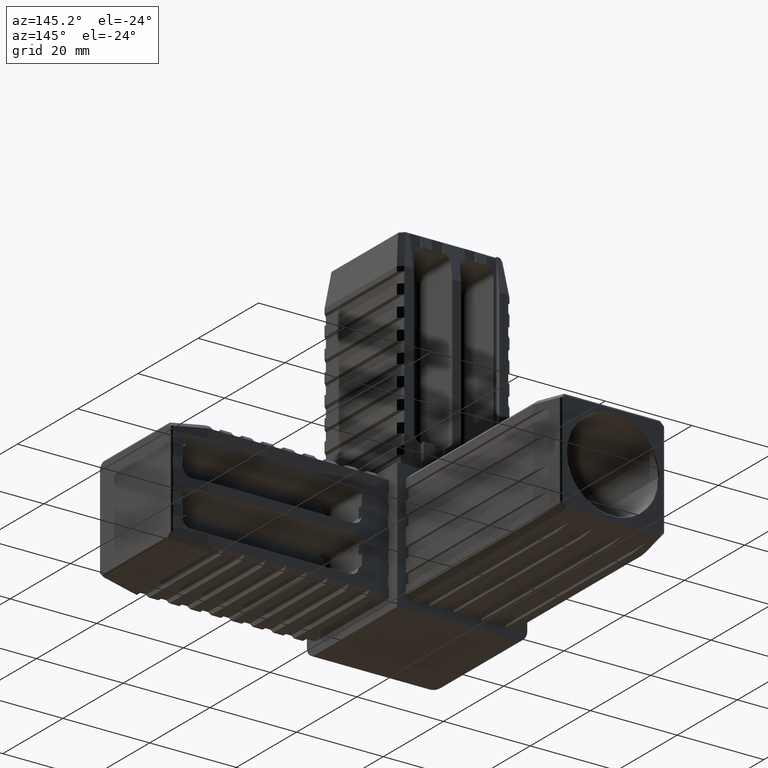
[diagram: clean part render]
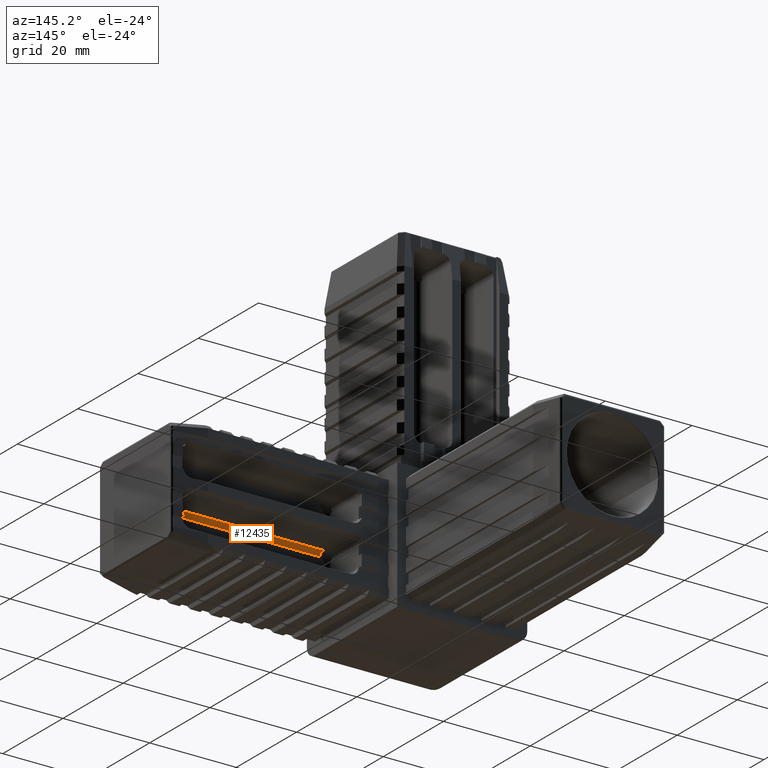
[diagram: same view with one face highlighted and labeled with its STEP entity id]
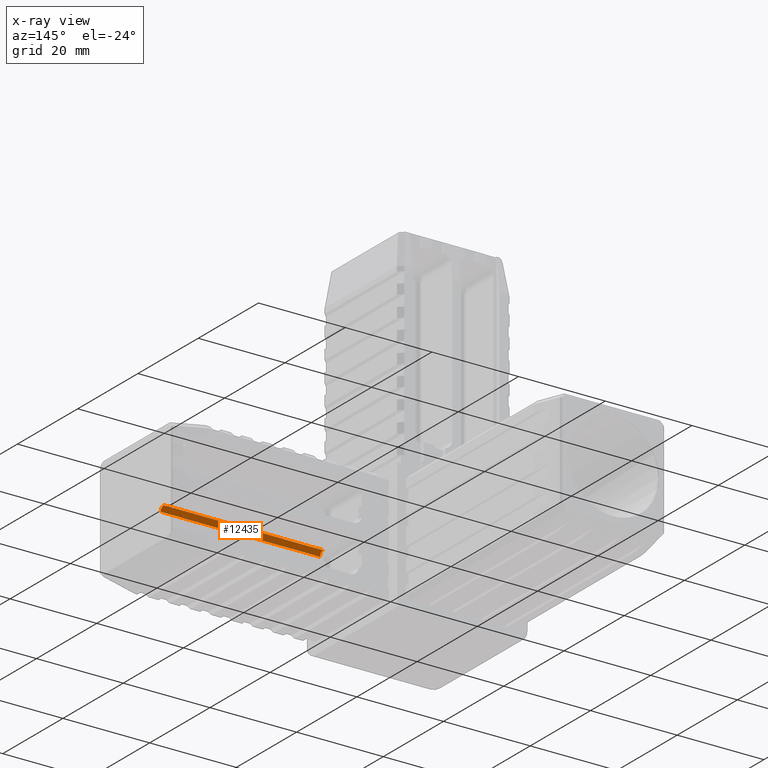
[diagram: x-ray of the same camera — body ghosted, the highlighted face saturated]
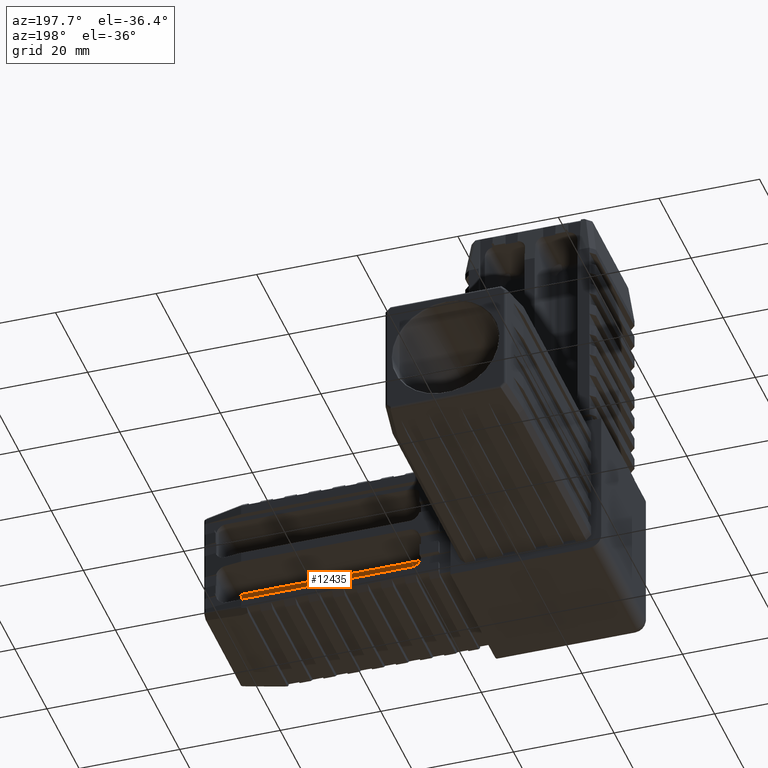
[diagram: same view with one face highlighted and labeled with its STEP entity id]
A machine part, auxiliary view. The second image highlights one B-rep face of the part: STEP entity #12435.
The next image is the same camera in x-ray: the body ghosted, the highlighted face saturated — about 0% of this face is hidden behind the body in this view.
A second angle (auxiliary view) of the same face is appended — the face is thin or edge-on in the first view.
In plain terms, the highlighted cylindrical surface (edge-blend (fillet) strip) has radius 1 mm, axis along (-1, 0, 0).
Its self-contained STEP definition (entity closure, byte-faithful):
#227=CIRCLE('',#13339,1.);
#238=CIRCLE('',#13353,1.);
#1267=FACE_OUTER_BOUND('',#1958,.T.);
#1958=EDGE_LOOP('',(#10354,#10355,#10356,#10357));
#3413=LINE('',#19982,#4903);
#3414=LINE('',#19983,#4904);
#4903=VECTOR('',#16044,10.);
#4904=VECTOR('',#16045,10.);
#6160=VERTEX_POINT('',#19916);
#6161=VERTEX_POINT('',#19917);
#6172=VERTEX_POINT('',#19966);
#6173=VERTEX_POINT('',#19968);
#7747=EDGE_CURVE('',#6160,#6161,#227,.T.);
#7765=EDGE_CURVE('',#6173,#6172,#238,.T.);
#7772=EDGE_CURVE('',#6172,#6160,#3413,.T.);
#7773=EDGE_CURVE('',#6161,#6173,#3414,.T.);
#10354=ORIENTED_EDGE('',*,*,#7765,.T.);
#10355=ORIENTED_EDGE('',*,*,#7772,.T.);
#10356=ORIENTED_EDGE('',*,*,#7747,.T.);
#10357=ORIENTED_EDGE('',*,*,#7773,.T.);
#12003=CYLINDRICAL_SURFACE('',#13358,1.);
#12435=ADVANCED_FACE('',(#1267),#12003,.F.);
#13339=AXIS2_PLACEMENT_3D('',#19918,#15994,#15995);
#13353=AXIS2_PLACEMENT_3D('',#19969,#16029,#16030);
#13358=AXIS2_PLACEMENT_3D('',#19981,#16042,#16043);
#15994=DIRECTION('center_axis',(1.,0.,0.));
#15995=DIRECTION('ref_axis',(0.,0.,1.));
#16029=DIRECTION('center_axis',(-1.,0.,0.));
#16030=DIRECTION('ref_axis',(0.,-1.,0.));
#16042=DIRECTION('center_axis',(-1.,0.,2.45292923079082E-16));
#16043=DIRECTION('ref_axis',(0.,-0.707106781186548,0.707106781186548));
#16044=DIRECTION('',(1.,0.,-2.45292923079082E-16));
#16045=DIRECTION('',(-1.,0.,2.45292923079082E-16));
#19916=CARTESIAN_POINT('',(60.519,3.,-1.129));
#19917=CARTESIAN_POINT('',(60.519,2.,-2.12899999999999));
#19918=CARTESIAN_POINT('Origin',(60.519,3.,-2.12899999999999));
#19966=CARTESIAN_POINT('',(23.784,3.,-1.12899999999999));
#19968=CARTESIAN_POINT('',(23.784,2.,-2.12899999999999));
#19969=CARTESIAN_POINT('Origin',(23.784,3.,-2.12899999999999));
#19981=CARTESIAN_POINT('Origin',(52.33525,3.,-2.12899999999999));
#19982=CARTESIAN_POINT('',(52.33525,3.,-1.12899999999999));
#19983=CARTESIAN_POINT('',(52.33525,2.,-2.12899999999999));